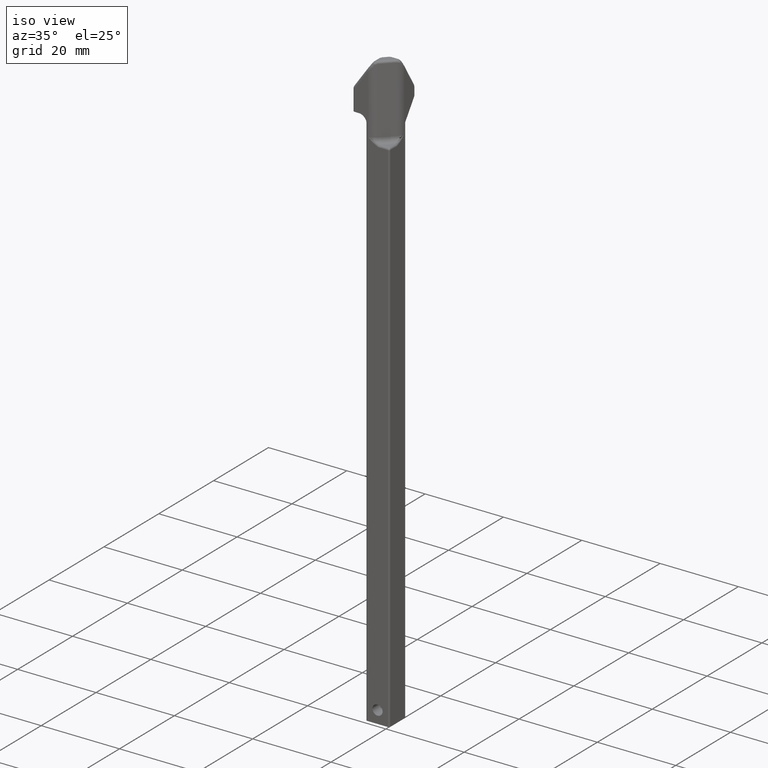
[diagram: clean part render]
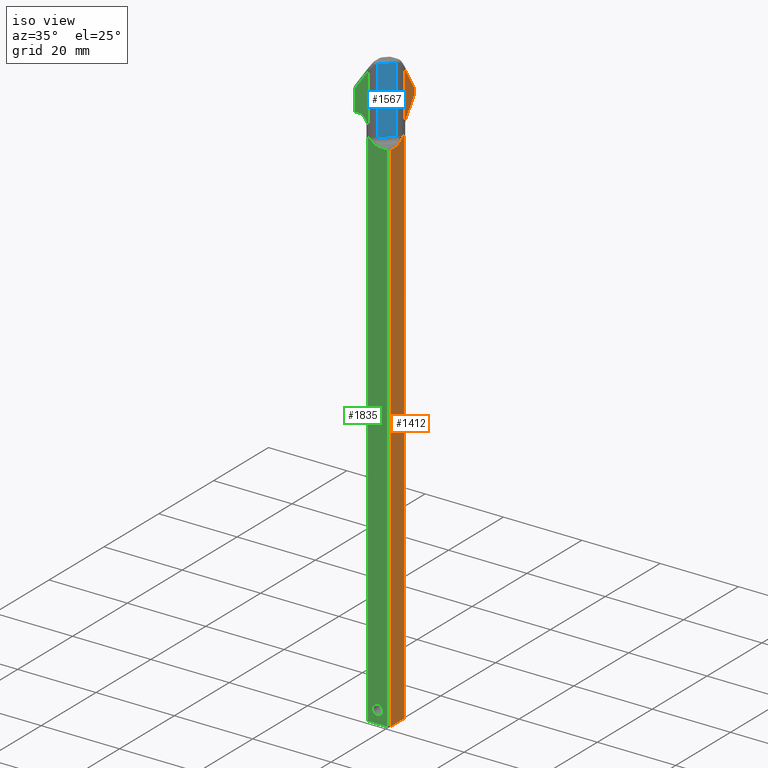
[diagram: same view with three faces highlighted in distinct colors, each labeled with its STEP entity id]
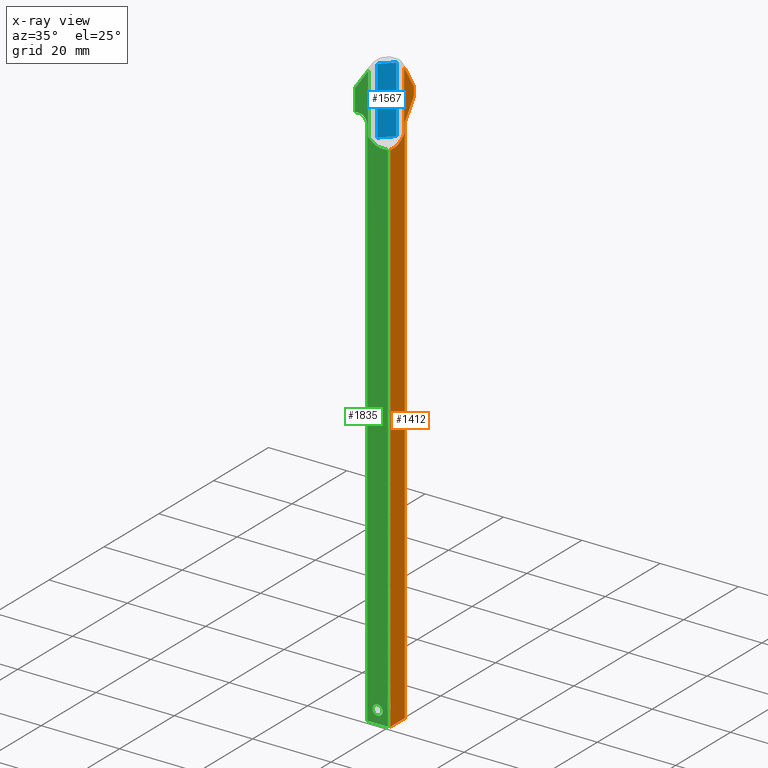
[diagram: x-ray of the same camera — body ghosted, the three highlighted faces saturated]
A machine part, iso view with three faces highlighted in distinct colors.
The next image is the same camera in x-ray (body ghosted, the three faces saturated) — at least one of them is partly hidden behind the body in this view.
Their STEP definitions:

[orange] entity #1412 — the highlighted planar face has unit normal (1, 0, 0).
#34=DIRECTION('',(0.E0,1.E0,0.E0));
#35=VECTOR('',#34,2.07E-1);
#36=CARTESIAN_POINT('',(1.185E-1,-1.035E-1,-3.76E0));
#37=LINE('',#36,#35);
#38=DIRECTION('',(0.E0,0.E0,1.E0));
#39=VECTOR('',#38,5.415190162607E0);
#40=CARTESIAN_POINT('',(1.185E-1,1.035E-1,-3.76E0));
#41=LINE('',#40,#39);
#46=DIRECTION('',(9.505282498686E-7,-5.299195975615E-1,8.480478878692E-1));
#47=VECTOR('',#46,2.574986964278E-1);
#48=CARTESIAN_POINT('',(1.185E-1,2.306129138270E-1,1.932826779507E0));
#49=LINE('',#48,#47);
#50=CARTESIAN_POINT('',(1.185E-1,2.145E-1,1.922758313487E0));
#51=DIRECTION('',(1.E0,0.E0,0.E0));
#52=DIRECTION('',(0.E0,1.E0,0.E0));
#53=AXIS2_PLACEMENT_3D('',#50,#51,#52);
#55=DIRECTION('',(0.E0,0.E0,1.E0));
#56=VECTOR('',#55,7.591823301449E-2);
#57=CARTESIAN_POINT('',(1.185E-1,2.335E-1,1.846840080472E0));
#58=LINE('',#57,#56);
#59=CARTESIAN_POINT('',(1.185E-1,2.145E-1,1.846840080472E0));
#60=DIRECTION('',(1.E0,0.E0,0.E0));
#61=DIRECTION('',(0.E0,8.191520442889E-1,-5.735764363512E-1));
#62=AXIS2_PLACEMENT_3D('',#59,#60,#61);
#64=DIRECTION('',(0.E0,5.735764363510E-1,8.191520442890E-1));
#65=VECTOR('',#64,2.206574064420E-1);
#66=CARTESIAN_POINT('',(1.185E-1,1.035E-1,1.655190162607E0));
#67=LINE('',#66,#65);
#68=DIRECTION('',(1.151559352283E-8,0.E0,-1.E0));
#69=VECTOR('',#68,5.239999999965E0);
#70=CARTESIAN_POINT('',(1.184999396583E-1,-1.035E-1,1.479999999965E0));
#71=LINE('',#70,#69);
#72=DIRECTION('',(8.567676667169E-6,9.999999999633E-1,8.367251373855E-10));
#73=VECTOR('',#72,6.552839134349E-2);
#74=CARTESIAN_POINT('',(1.184999396583E-1,-1.035E-1,1.479999999965E0));
#75=LINE('',#74,#73);
#76=CARTESIAN_POINT('',(1.185005010844E-1,-3.797160865890E-2,1.480000000020E0));
#77=CARTESIAN_POINT('',(1.184999622714E-1,-2.816361267860E-2,1.480000768572E0));
#78=CARTESIAN_POINT('',(1.184997994678E-1,-9.656660291361E-3,1.482016753979E0));
#79=CARTESIAN_POINT('',(1.185004387931E-1,6.566230520255E-3,1.487167947850E0));
#80=CARTESIAN_POINT('',(1.185008286448E-1,1.416042547223E-2,1.490492643408E0));
#82=CARTESIAN_POINT('',(1.185008286448E-1,1.416042547223E-2,1.490492643408E0));
#83=CARTESIAN_POINT('',(1.185008539210E-1,1.812529517746E-2,1.492229315862E0));
#84=CARTESIAN_POINT('',(1.184996023146E-1,2.621746633110E-2,1.496193410980E0));
#85=CARTESIAN_POINT('',(1.185001110175E-1,3.882038968333E-2,1.503727938235E0));
#86=CARTESIAN_POINT('',(1.184999536155E-1,5.179603599369E-2,1.512868616353E0));
#87=CARTESIAN_POINT('',(1.185000745206E-1,6.515099516287E-2,1.523594766671E0));
#88=CARTESIAN_POINT('',(1.184997483022E-1,7.899138195098E-2,1.535824941924E0));
#89=CARTESIAN_POINT('',(1.185005376145E-1,8.896088713163E-2,1.545136002210E0));
#90=CARTESIAN_POINT('',(1.185E-1,9.416042558696E-2,1.55E0));
#92=DIRECTION('',(-4.071200888083E-7,1.858528453909E-6,-9.999999999982E-1));
#93=VECTOR('',#92,6.011980051427E-1);
#94=CARTESIAN_POINT('',(1.185002447598E-1,9.415930824336E-2,2.151198005142E0));
#95=LINE('',#94,#93);
#114=CARTESIAN_POINT('',(1.185002447598E-1,9.415930824336E-2,2.151198005142E0));
#1142=CARTESIAN_POINT('',(1.185E-1,1.035E-1,-3.76E0));
#1144=VERTEX_POINT('',#1142);
#1155=CARTESIAN_POINT('',(1.185E-1,-1.035E-1,-3.76E0));
#1156=VERTEX_POINT('',#1155);
#1171=CARTESIAN_POINT('',(1.184999396583E-1,-1.035E-1,1.479999999965E0));
#1172=CARTESIAN_POINT('',(1.185005010844E-1,-3.797160865890E-2,
1.480000000020E0));
#1173=VERTEX_POINT('',#1171);
#1174=VERTEX_POINT('',#1172);
#1204=VERTEX_POINT('',#82);
#1205=VERTEX_POINT('',#90);
#1262=VERTEX_POINT('',#114);
#1264=CARTESIAN_POINT('',(1.185E-1,2.306129138270E-1,1.932826779507E0));
#1265=VERTEX_POINT('',#1264);
#1268=CARTESIAN_POINT('',(1.185E-1,2.335E-1,1.922758313487E0));
#1269=VERTEX_POINT('',#1268);
#1272=CARTESIAN_POINT('',(1.185E-1,2.335E-1,1.846840080472E0));
#1273=VERTEX_POINT('',#1272);
#1276=CARTESIAN_POINT('',(1.185E-1,2.300638888415E-1,1.835942128181E0));
#1277=VERTEX_POINT('',#1276);
#1280=CARTESIAN_POINT('',(1.185E-1,1.035E-1,1.655190162607E0));
#1281=VERTEX_POINT('',#1280);
#1383=CARTESIAN_POINT('',(1.185E-1,-1.185E-1,-3.76E0));
#1384=DIRECTION('',(1.E0,0.E0,0.E0));
#1385=DIRECTION('',(0.E0,1.E0,0.E0));
#1386=AXIS2_PLACEMENT_3D('',#1383,#1384,#1385);
#1387=PLANE('',#1386);
#1389=ORIENTED_EDGE('',*,*,#1388,.F.);
#1391=ORIENTED_EDGE('',*,*,#1390,.F.);
#1393=ORIENTED_EDGE('',*,*,#1392,.F.);
#1395=ORIENTED_EDGE('',*,*,#1394,.F.);
#1397=ORIENTED_EDGE('',*,*,#1396,.F.);
#1398=ORIENTED_EDGE('',*,*,#1373,.F.);
#1399=ORIENTED_EDGE('',*,*,#1363,.F.);
#1401=ORIENTED_EDGE('',*,*,#1400,.F.);
#1403=ORIENTED_EDGE('',*,*,#1402,.T.);
#1405=ORIENTED_EDGE('',*,*,#1404,.T.);
#1407=ORIENTED_EDGE('',*,*,#1406,.T.);
#1409=ORIENTED_EDGE('',*,*,#1408,.F.);
#1410=EDGE_LOOP('',(#1389,#1391,#1393,#1395,#1397,#1398,#1399,#1401,#1403,#1405,
#1407,#1409));
#1411=FACE_OUTER_BOUND('',#1410,.F.);
#1412=ADVANCED_FACE('',(#1411),#1387,.T.);
#54=CIRCLE('',#53,1.9E-2);
#63=CIRCLE('',#62,1.9E-2);
#81=B_SPLINE_CURVE_WITH_KNOTS('',3,(#76,#77,#78,#79,#80),.UNSPECIFIED.,.F.,.F.,(
4,1,4),(0.E0,5.E-1,1.E0),.UNSPECIFIED.);
#91=B_SPLINE_CURVE_WITH_KNOTS('',3,(#82,#83,#84,#85,#86,#87,#88,#89,#90),
.UNSPECIFIED.,.F.,.F.,(4,1,1,1,1,1,4),(0.E0,1.666666666667E-1,3.333333333333E-1,
5.E-1,6.666666666667E-1,8.333333333333E-1,1.E0),.UNSPECIFIED.);
#1363=EDGE_CURVE('',#1156,#1144,#37,.T.);
#1373=EDGE_CURVE('',#1144,#1281,#41,.T.);
#1388=EDGE_CURVE('',#1265,#1262,#49,.T.);
#1390=EDGE_CURVE('',#1269,#1265,#54,.T.);
#1392=EDGE_CURVE('',#1273,#1269,#58,.T.);
#1394=EDGE_CURVE('',#1277,#1273,#63,.T.);
#1396=EDGE_CURVE('',#1281,#1277,#67,.T.);
#1400=EDGE_CURVE('',#1173,#1156,#71,.T.);
#1402=EDGE_CURVE('',#1173,#1174,#75,.T.);
#1404=EDGE_CURVE('',#1174,#1204,#81,.T.);
#1406=EDGE_CURVE('',#1204,#1205,#91,.T.);
#1408=EDGE_CURVE('',#1262,#1205,#95,.T.);

[blue] entity #1567 — the highlighted planar face has unit normal (0.7071, -0.7071, 0).
#146=CARTESIAN_POINT('',(-1.876996487461E-2,-8.453089552433E-2,2.219E0));
#147=CARTESIAN_POINT('',(-1.954947771082E-2,-8.531040836053E-2,
2.219000082271E0));
#148=CARTESIAN_POINT('',(-2.110877995777E-2,-8.686982357676E-2,
2.218905014712E0));
#149=CARTESIAN_POINT('',(-2.266967765518E-2,-8.843038236888E-2,
2.218613022194E0));
#150=CARTESIAN_POINT('',(-2.344986051087E-2,-8.921056522457E-2,
2.218414658133E0));
#152=DIRECTION('',(-7.071067811886E-1,-7.071067811845E-1,0.E0));
#153=VECTOR('',#152,1.527076897944E-1);
#154=CARTESIAN_POINT('',(8.921067811868E-2,2.344974746833E-2,2.219E0));
#155=LINE('',#154,#153);
#156=DIRECTION('',(-4.374925932239E-14,-4.373370126431E-14,-1.E0));
#157=VECTOR('',#156,6.69E-1);
#158=CARTESIAN_POINT('',(8.921067811868E-2,2.344974746833E-2,2.219E0));
#159=LINE('',#158,#157);
#160=DIRECTION('',(7.071067811865E-1,7.071067811865E-1,0.E0));
#161=VECTOR('',#160,1.593259018078E-1);
#162=CARTESIAN_POINT('',(-2.344974746831E-2,-8.921067811865E-2,1.55E0));
#163=LINE('',#162,#161);
#164=DIRECTION('',(-1.691204200810E-7,1.688982743438E-7,1.E0));
#165=VECTOR('',#164,6.684146581330E-1);
#166=CARTESIAN_POINT('',(-2.344974746831E-2,-8.921067811865E-2,1.55E0));
#167=LINE('',#166,#165);
#1197=CARTESIAN_POINT('',(-2.344974746831E-2,-8.921067811865E-2,1.55E0));
#1198=CARTESIAN_POINT('',(8.921067811865E-2,2.344974746831E-2,1.55E0));
#1199=VERTEX_POINT('',#1197);
#1200=VERTEX_POINT('',#1198);
#1250=VERTEX_POINT('',#146);
#1251=VERTEX_POINT('',#150);
#1254=CARTESIAN_POINT('',(8.921067811868E-2,2.344974746833E-2,2.219E0));
#1255=VERTEX_POINT('',#1254);
#1552=CARTESIAN_POINT('',(-5.273906934965E-2,-1.185E-1,1.5E0));
#1553=DIRECTION('',(7.071067811865E-1,-7.071067811865E-1,0.E0));
#1554=DIRECTION('',(7.071067811865E-1,7.071067811865E-1,0.E0));
#1555=AXIS2_PLACEMENT_3D('',#1552,#1553,#1554);
#1556=PLANE('',#1555);
#1558=ORIENTED_EDGE('',*,*,#1557,.F.);
#1559=ORIENTED_EDGE('',*,*,#1542,.F.);
#1560=ORIENTED_EDGE('',*,*,#1474,.T.);
#1562=ORIENTED_EDGE('',*,*,#1561,.F.);
#1564=ORIENTED_EDGE('',*,*,#1563,.T.);
#1565=EDGE_LOOP('',(#1558,#1559,#1560,#1562,#1564));
#1566=FACE_OUTER_BOUND('',#1565,.F.);
#1567=ADVANCED_FACE('',(#1566),#1556,.T.);
#151=B_SPLINE_CURVE_WITH_KNOTS('',3,(#146,#147,#148,#149,#150),.UNSPECIFIED.,
.F.,.F.,(4,1,4),(0.E0,5.E-1,1.E0),.UNSPECIFIED.);
#1474=EDGE_CURVE('',#1255,#1200,#159,.T.);
#1542=EDGE_CURVE('',#1255,#1250,#155,.T.);
#1557=EDGE_CURVE('',#1250,#1251,#151,.T.);
#1561=EDGE_CURVE('',#1199,#1200,#163,.T.);
#1563=EDGE_CURVE('',#1199,#1251,#167,.T.);

[green] entity #1835 — the highlighted planar face has unit normal (0, -1, 0).
#25=DIRECTION('',(1.E0,0.E0,0.E0));
#26=VECTOR('',#25,2.07E-1);
#27=CARTESIAN_POINT('',(-1.035E-1,-1.185E-1,-3.76E0));
#28=LINE('',#27,#26);
#202=CARTESIAN_POINT('',(-9.416042558696E-2,-1.185E-1,1.55E0));
#222=CARTESIAN_POINT('',(0.E0,-1.185E-1,-3.634E0));
#223=DIRECTION('',(0.E0,1.E0,0.E0));
#224=DIRECTION('',(-1.E0,0.E0,0.E0));
#225=AXIS2_PLACEMENT_3D('',#222,#223,#224);
#227=CARTESIAN_POINT('',(0.E0,-1.185E-1,-3.634E0));
#228=DIRECTION('',(0.E0,1.E0,0.E0));
#229=DIRECTION('',(1.E0,0.E0,0.E0));
#230=AXIS2_PLACEMENT_3D('',#227,#228,#229);
#232=DIRECTION('',(0.E0,0.E0,-1.E0));
#233=VECTOR('',#232,2.073880484448E-1);
#234=CARTESIAN_POINT('',(-2.295E-1,-1.185E-1,1.947388048445E0));
#235=LINE('',#234,#233);
#236=CARTESIAN_POINT('',(-2.105E-1,-1.185E-1,1.947388048445E0));
#237=DIRECTION('',(0.E0,-1.E0,0.E0));
#238=DIRECTION('',(-8.191520442890E-1,0.E0,5.735764363511E-1));
#239=AXIS2_PLACEMENT_3D('',#236,#237,#238);
#241=DIRECTION('',(-5.735779172674E-1,2.101346821078E-6,-8.191510073355E-1));
#242=VECTOR('',#241,2.299742750379E-1);
#243=CARTESIAN_POINT('',(-9.415572314019E-2,-1.185004832557E-1,
2.146669659794E0));
#244=LINE('',#243,#242);
#245=DIRECTION('',(7.881156172781E-6,-8.099217110055E-7,9.999999999686E-1));
#246=VECTOR('',#245,5.966696598128E-1);
#247=CARTESIAN_POINT('',(-9.416042558696E-2,-1.185E-1,1.55E0));
#248=LINE('',#247,#246);
#249=CARTESIAN_POINT('',(-9.416042558696E-2,-1.185E-1,1.55E0));
#250=CARTESIAN_POINT('',(-8.885535343938E-2,-1.185006103927E-1,
1.545037260048E0));
#251=CARTESIAN_POINT('',(-7.871289718086E-2,-1.184997145650E-1,
1.535565008859E0));
#252=CARTESIAN_POINT('',(-6.465142992458E-2,-1.185000834334E-1,
1.523168421769E0));
#253=CARTESIAN_POINT('',(-5.129951703067E-2,-1.184999517014E-1,
1.512496458805E0));
#254=CARTESIAN_POINT('',(-3.844233746107E-2,-1.185001097610E-1,
1.503487418453E0));
#255=CARTESIAN_POINT('',(-2.602151504430E-2,-1.184996092545E-1,
1.496093661834E0));
#256=CARTESIAN_POINT('',(-1.805661187893E-2,-1.185008385655E-1,
1.492199237003E0));
#257=CARTESIAN_POINT('',(-1.416042545391E-2,-1.185008150747E-1,
1.490492643397E0));
#259=CARTESIAN_POINT('',(-1.416042545391E-2,-1.185008150747E-1,
1.490492643397E0));
#260=CARTESIAN_POINT('',(-6.564371332465E-3,-1.185005409933E-1,
1.487166847686E0));
#261=CARTESIAN_POINT('',(9.661192218283E-3,-1.184997622418E-1,
1.482016209723E0));
#262=CARTESIAN_POINT('',(2.816580243488E-2,-1.184999345231E-1,
1.480000769283E0));
#263=CARTESIAN_POINT('',(3.797160871629E-2,-1.185004766983E-1,
1.480000000017E0));
#265=DIRECTION('',(9.999999999731E-1,7.333607716780E-6,-2.626174836164E-10));
#266=VECTOR('',#265,6.552839031859E-2);
#267=CARTESIAN_POINT('',(3.797160871629E-2,-1.185004766983E-1,
1.480000000017E0));
#268=LINE('',#267,#266);
#269=DIRECTION('',(1.845195540043E-10,-7.368738756368E-10,-1.E0));
#270=VECTOR('',#269,5.24E0);
#271=CARTESIAN_POINT('',(1.034999990331E-1,-1.184999961388E-1,1.48E0));
#272=LINE('',#271,#270);
#273=DIRECTION('',(0.E0,0.E0,1.E0));
#274=VECTOR('',#273,5.43E0);
#275=CARTESIAN_POINT('',(-1.035E-1,-1.185E-1,-3.76E0));
#276=LINE('',#275,#274);
#527=DIRECTION('',(1.E0,0.E0,0.E0));
#528=VECTOR('',#527,4.233399734659E-2);
#529=CARTESIAN_POINT('',(-2.295E-1,-1.185E-1,1.74E0));
#530=LINE('',#529,#528);
#555=CARTESIAN_POINT('',(-1.871660026534E-1,-1.185E-1,1.74E0));
#556=CARTESIAN_POINT('',(-1.822367834814E-1,-1.185E-1,1.74E0));
#557=CARTESIAN_POINT('',(-1.727875535481E-1,-1.185E-1,1.739002665482E0));
#558=CARTESIAN_POINT('',(-1.598085944178E-1,-1.185E-1,1.735111498578E0));
#559=CARTESIAN_POINT('',(-1.481090542053E-1,-1.185E-1,1.729238456161E0));
#560=CARTESIAN_POINT('',(-1.377472882426E-1,-1.185E-1,1.721721647025E0));
#561=CARTESIAN_POINT('',(-1.287964289177E-1,-1.185E-1,1.712953074738E0));
#562=CARTESIAN_POINT('',(-1.209999426960E-1,-1.185E-1,1.703001562042E0));
#563=CARTESIAN_POINT('',(-1.142754459919E-1,-1.185E-1,1.692118191148E0));
#564=CARTESIAN_POINT('',(-1.084358106541E-1,-1.185E-1,1.680681246289E0));
#565=CARTESIAN_POINT('',(-1.051198604285E-1,-1.185E-1,1.673499298468E0));
#566=CARTESIAN_POINT('',(-1.035E-1,-1.185E-1,1.67E0));
#1151=CARTESIAN_POINT('',(-1.035E-1,-1.185E-1,-3.76E0));
#1152=CARTESIAN_POINT('',(1.035E-1,-1.185E-1,-3.76E0));
#1153=VERTEX_POINT('',#1151);
#1154=VERTEX_POINT('',#1152);
#1161=CARTESIAN_POINT('',(3.797160871629E-2,-1.185004766983E-1,
1.480000000017E0));
#1162=CARTESIAN_POINT('',(1.034999990331E-1,-1.184999961388E-1,1.48E0));
#1163=VERTEX_POINT('',#1161);
#1164=VERTEX_POINT('',#1162);
#1201=VERTEX_POINT('',#202);
#1203=VERTEX_POINT('',#257);
#1207=CARTESIAN_POINT('',(-5.1E-2,-1.185E-1,-3.634E0));
#1208=CARTESIAN_POINT('',(5.1E-2,-1.185E-1,-3.634E0));
#1209=VERTEX_POINT('',#1207);
#1210=VERTEX_POINT('',#1208);
#1216=CARTESIAN_POINT('',(-1.035E-1,-1.185E-1,1.67E0));
#1218=VERTEX_POINT('',#1216);
#1220=CARTESIAN_POINT('',(-1.871660026534E-1,-1.185E-1,1.74E0));
#1222=VERTEX_POINT('',#1220);
#1232=CARTESIAN_POINT('',(-2.295E-1,-1.185E-1,1.74E0));
#1234=VERTEX_POINT('',#1232);
#1238=CARTESIAN_POINT('',(-2.295E-1,-1.185E-1,1.947388048445E0));
#1239=VERTEX_POINT('',#1238);
#1240=CARTESIAN_POINT('',(-2.260638888415E-1,-1.185E-1,1.958286000736E0));
#1241=VERTEX_POINT('',#1240);
#1244=CARTESIAN_POINT('',(-9.415572314019E-2,-1.185004832557E-1,
2.146669659794E0));
#1245=VERTEX_POINT('',#1244);
#1803=CARTESIAN_POINT('',(-1.185E-1,-1.185E-1,-3.76E0));
#1804=DIRECTION('',(0.E0,-1.E0,0.E0));
#1805=DIRECTION('',(1.E0,0.E0,0.E0));
#1806=AXIS2_PLACEMENT_3D('',#1803,#1804,#1805);
#1807=PLANE('',#1806);
#1809=ORIENTED_EDGE('',*,*,#1808,.F.);
#1811=ORIENTED_EDGE('',*,*,#1810,.F.);
#1813=ORIENTED_EDGE('',*,*,#1812,.F.);
#1814=ORIENTED_EDGE('',*,*,#1682,.F.);
#1815=ORIENTED_EDGE('',*,*,#1748,.T.);
#1816=ORIENTED_EDGE('',*,*,#1780,.T.);
#1817=ORIENTED_EDGE('',*,*,#1793,.T.);
#1819=ORIENTED_EDGE('',*,*,#1818,.T.);
#1820=ORIENTED_EDGE('',*,*,#1359,.F.);
#1822=ORIENTED_EDGE('',*,*,#1821,.T.);
#1824=ORIENTED_EDGE('',*,*,#1823,.F.);
#1826=ORIENTED_EDGE('',*,*,#1825,.F.);
#1827=EDGE_LOOP('',(#1809,#1811,#1813,#1814,#1815,#1816,#1817,#1819,#1820,#1822,
#1824,#1826));
#1828=FACE_OUTER_BOUND('',#1827,.F.);
#1830=ORIENTED_EDGE('',*,*,#1829,.F.);
#1832=ORIENTED_EDGE('',*,*,#1831,.F.);
#1833=EDGE_LOOP('',(#1830,#1832));
#1834=FACE_BOUND('',#1833,.F.);
#1835=ADVANCED_FACE('',(#1828,#1834),#1807,.T.);
#226=CIRCLE('',#225,5.1E-2);
#231=CIRCLE('',#230,5.1E-2);
#240=CIRCLE('',#239,1.9E-2);
#258=B_SPLINE_CURVE_WITH_KNOTS('',3,(#249,#250,#251,#252,#253,#254,#255,#256,
#257),.UNSPECIFIED.,.F.,.F.,(4,1,1,1,1,1,4),(0.E0,1.666666666667E-1,
3.333333333333E-1,5.E-1,6.666666666667E-1,8.333333333333E-1,1.E0),
.UNSPECIFIED.);
#264=B_SPLINE_CURVE_WITH_KNOTS('',3,(#259,#260,#261,#262,#263),.UNSPECIFIED.,
.F.,.F.,(4,1,4),(0.E0,5.E-1,1.E0),.UNSPECIFIED.);
#567=B_SPLINE_CURVE_WITH_KNOTS('',3,(#555,#556,#557,#558,#559,#560,#561,#562,
#563,#564,#565,#566),.UNSPECIFIED.,.F.,.F.,(4,1,1,1,1,1,1,1,1,4),(0.E0,
1.111111111111E-1,2.222222222222E-1,3.333333333333E-1,4.444444444444E-1,
5.555555555556E-1,6.666666666667E-1,7.777777777778E-1,8.888888888889E-1,1.E0),
.UNSPECIFIED.);
#1359=EDGE_CURVE('',#1153,#1154,#28,.T.);
#1682=EDGE_CURVE('',#1201,#1245,#248,.T.);
#1748=EDGE_CURVE('',#1201,#1203,#258,.T.);
#1780=EDGE_CURVE('',#1203,#1163,#264,.T.);
#1793=EDGE_CURVE('',#1163,#1164,#268,.T.);
#1808=EDGE_CURVE('',#1239,#1234,#235,.T.);
#1810=EDGE_CURVE('',#1241,#1239,#240,.T.);
#1812=EDGE_CURVE('',#1245,#1241,#244,.T.);
#1818=EDGE_CURVE('',#1164,#1154,#272,.T.);
#1821=EDGE_CURVE('',#1153,#1218,#276,.T.);
#1823=EDGE_CURVE('',#1222,#1218,#567,.T.);
#1825=EDGE_CURVE('',#1234,#1222,#530,.T.);
#1829=EDGE_CURVE('',#1209,#1210,#226,.T.);
#1831=EDGE_CURVE('',#1210,#1209,#231,.T.);